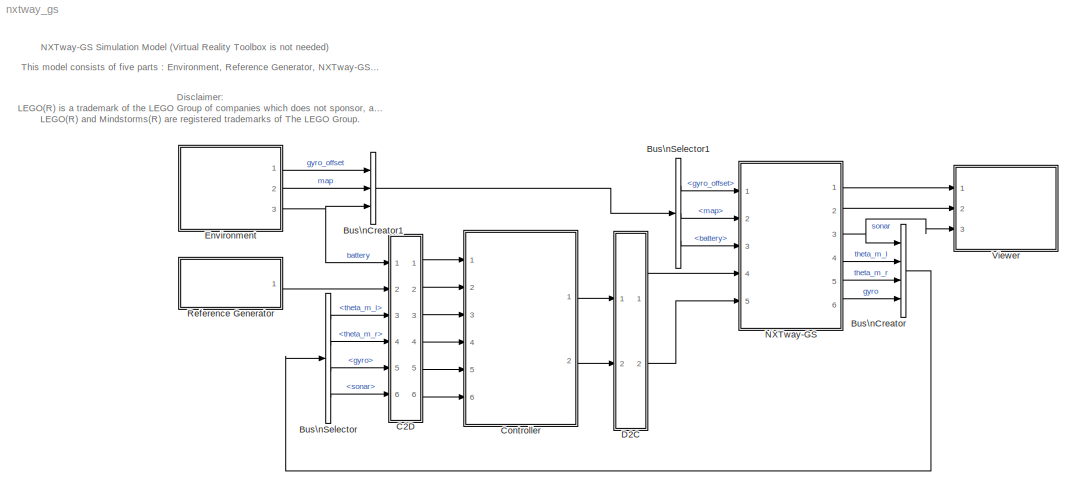
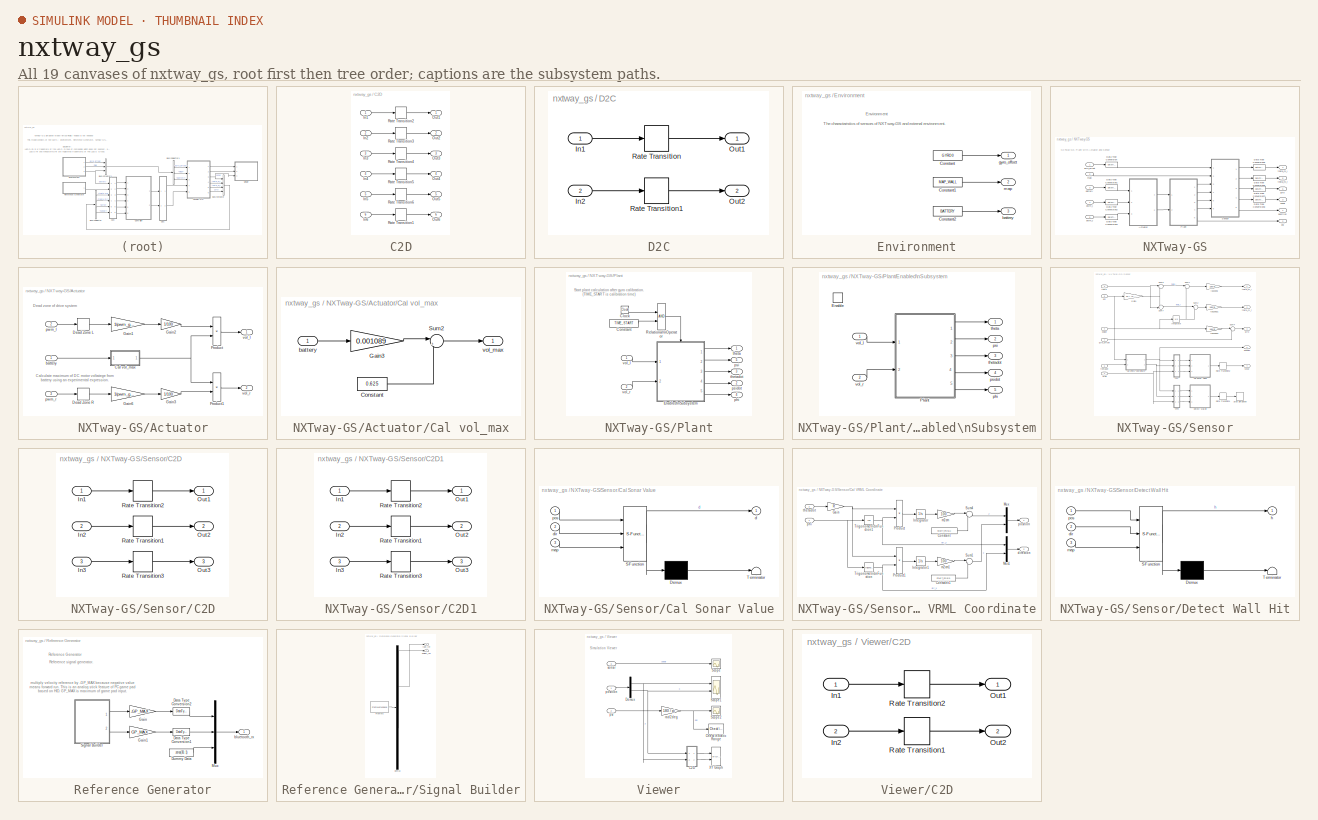
[diagram: thumbnail index - all 19 canvases of the model, root first then tree order]
MODEL nxtway_gs
KIND model
CONFIG PreLoadFcn = param_nxtway_gs
BLOCK [BusCreator] Bus\nCreator
  DisplayOption = bar
  Ports = [4, 1]
BLOCK [BusCreator] Bus\nCreator1
  DisplayOption = bar
  Inputs = 3
  Ports = [3, 1]
BLOCK [BusSelector] Bus\nSelector
  OutputSignals = theta_m_l,theta_m_r,gyro,sonar
  Ports = [1, 4]
BLOCK [BusSelector] Bus\nSelector1
  OutputSignals = gyro_offset,map,battery
  Ports = [1, 3]
BLOCK [SubSystem] C2D
  FunctionWithSeparateData = off
  MaskDisplay = fprintf('C2D')
  MaskIconFrame = on
  MaskIconOpaque = on
  MaskIconRotate = none
  MaskIconUnits = autoscale
  MinAlgLoopOccurrences = off
  Ports = [6, 6]
  RTWSystemCode = Auto
BLOCK [Inport] C2D/In1
  IconDisplay = Port number
  OutDataType = sfix(16)
  OutScaling = 2^0
BLOCK [Inport] C2D/In2
  IconDisplay = Port number
  OutDataType = sfix(16)
  OutScaling = 2^0
  Port = 2
BLOCK [Inport] C2D/In3
  IconDisplay = Port number
  OutDataType = sfix(16)
  OutScaling = 2^0
  Port = 3
BLOCK [Inport] C2D/In4
  IconDisplay = Port number
  OutDataType = sfix(16)
  OutScaling = 2^0
  Port = 4
BLOCK [Inport] C2D/In5
  IconDisplay = Port number
  OutDataType = sfix(16)
  OutScaling = 2^0
  Port = 5
BLOCK [Inport] C2D/In6
  IconDisplay = Port number
  OutDataType = sfix(16)
  OutScaling = 2^0
  Port = 6
BLOCK [Outport] C2D/Out1
  IconDisplay = Port number
  OutDataType = sfix(16)
  OutScaling = 2^0
BLOCK [Outport] C2D/Out2
  IconDisplay = Port number
  OutDataType = sfix(16)
  OutScaling = 2^0
  Port = 2
BLOCK [Outport] C2D/Out3
  IconDisplay = Port number
  OutDataType = sfix(16)
  OutScaling = 2^0
  Port = 3
BLOCK [Outport] C2D/Out4
  IconDisplay = Port number
  OutDataType = sfix(16)
  OutScaling = 2^0
  Port = 4
BLOCK [Outport] C2D/Out5
  IconDisplay = Port number
  OutDataType = sfix(16)
  OutScaling = 2^0
  Port = 5
BLOCK [Outport] C2D/Out6
  IconDisplay = Port number
  OutDataType = sfix(16)
  OutScaling = 2^0
  Port = 6
BLOCK [RateTransition] C2D/Rate Transition1
  AttributesFormatString = Ts=%<OutPortSampleTime>
  Integrity = off
  OutPortSampleTime = TS
BLOCK [RateTransition] C2D/Rate Transition2
  AttributesFormatString = Ts=%<OutPortSampleTime>
  Integrity = off
  OutPortSampleTime = TS
BLOCK [RateTransition] C2D/Rate Transition3
  AttributesFormatString = Ts=%<OutPortSampleTime>
  Integrity = off
  OutPortSampleTime = TS
BLOCK [RateTransition] C2D/Rate Transition4
  AttributesFormatString = Ts=%<OutPortSampleTime>
  Integrity = off
  OutPortSampleTime = TS
BLOCK [RateTransition] C2D/Rate Transition5
  AttributesFormatString = Ts=%<OutPortSampleTime>
  Integrity = off
  OutPortSampleTime = TS
BLOCK [RateTransition] C2D/Rate Transition6
  AttributesFormatString = Ts=%<OutPortSampleTime>
  Integrity = off
  OutPortSampleTime = TS
BLOCK [ModelReference] Controller
  CopyOfModelName = nxtway_gs_controller
  ModelName = nxtway_gs_controller
  ModelReferenceVersion = 1.721
  Ports = [6, 2]
BLOCK [SubSystem] D2C
  FunctionWithSeparateData = off
  MaskDisplay = fprintf('D2C')
  MaskIconFrame = on
  MaskIconOpaque = on
  MaskIconRotate = none
  MaskIconUnits = autoscale
  MinAlgLoopOccurrences = off
  Ports = [2, 2]
  RTWSystemCode = Auto
BLOCK [Inport] D2C/In1
  IconDisplay = Port number
  OutDataType = sfix(16)
  OutScaling = 2^0
BLOCK [Inport] D2C/In2
  IconDisplay = Port number
  OutDataType = sfix(16)
  OutScaling = 2^0
  Port = 2
BLOCK [Outport] D2C/Out1
  IconDisplay = Port number
  OutDataType = sfix(16)
  OutScaling = 2^0
  SampleTime = 0
BLOCK [Outport] D2C/Out2
  IconDisplay = Port number
  OutDataType = sfix(16)
  OutScaling = 2^0
  Port = 2
  SampleTime = 0
BLOCK [RateTransition] D2C/Rate Transition
  AttributesFormatString = Ts=%<OutPortSampleTime>
  Integrity = off
  OutPortSampleTime = 0
BLOCK [RateTransition] D2C/Rate Transition1
  AttributesFormatString = Ts=%<OutPortSampleTime>
  Integrity = off
  OutPortSampleTime = 0
BLOCK [SubSystem] Environment
  FunctionWithSeparateData = off
  MinAlgLoopOccurrences = off
  Ports = [0, 3]
  RTWSystemCode = Auto
BLOCK [Constant] Environment/Constant
  AttributesFormatString = DataType = %<OutDataTypeStr>
  OutDataType = sfix(16)
  OutDataTypeMode = uint16
  OutScaling = 2^0
  Value = GYRO0
BLOCK [Constant] Environment/Constant1
  AttributesFormatString = DataType = %<OutDataTypeStr>
  OutDataType = sfix(16)
  OutDataTypeMode = boolean
  OutScaling = 2^0
  Value = MAP_WALL
  VectorParams1D = off
BLOCK [Constant] Environment/Constant2
  AttributesFormatString = DataType = %<OutDataTypeStr>
  OutDataType = sfix(16)
  OutDataTypeMode = uint16
  OutScaling = 2^0
  Value = BATTERY
BLOCK [Outport] Environment/battery
  IconDisplay = Port number
  OutDataType = sfix(16)
  OutScaling = 2^0
  Port = 3
BLOCK [Outport] Environment/gyro_offset
  IconDisplay = Port number
  OutDataType = sfix(16)
  OutScaling = 2^0
BLOCK [Outport] Environment/map
  IconDisplay = Port number
  OutDataType = sfix(16)
  OutScaling = 2^0
  Port = 2
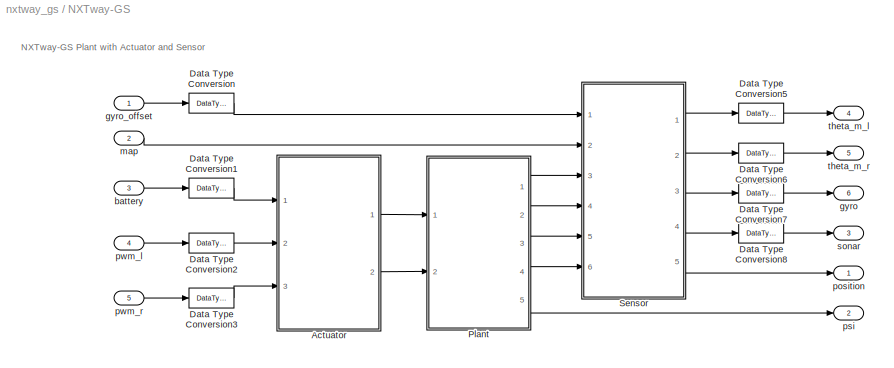
BLOCK [SubSystem] NXTway-GS
  FunctionWithSeparateData = off
  MinAlgLoopOccurrences = off
  Ports = [5, 6]
  RTWSystemCode = Auto
BLOCK [SubSystem] NXTway-GS/Actuator
  FunctionWithSeparateData = off
  MinAlgLoopOccurrences = off
  Ports = [3, 2]
  RTWSystemCode = Auto
BLOCK [SubSystem] NXTway-GS/Actuator/Cal vol_max
  FunctionWithSeparateData = off
  MinAlgLoopOccurrences = off
  Ports = [1, 1]
  RTWSystemCode = Auto
BLOCK [Constant] NXTway-GS/Actuator/Cal vol_max/Constant
  AttributesFormatString = DataType = %<OutDataTypeStr>
  OutDataType = sfix(16)
  OutDataTypeMode = double
  OutScaling = 2^0
  Value = 0.625
BLOCK [Gain] NXTway-GS/Actuator/Cal vol_max/Gain3
  Gain = 0.001089
  OutDataType = sfix(16)
  OutScaling = 2^0
  ParameterDataType = sfix(16)
  ParameterScaling = 2^0
  SaturateOnIntegerOverflow = off
BLOCK [Sum] NXTway-GS/Actuator/Cal vol_max/Sum2
  CollapseMode = All dimensions
  IconShape = round
  InputSameDT = off
  Inputs = |+-
  OutDataType = sfix(16)
  OutScaling = 2^0
  Ports = [2, 1]
  SaturateOnIntegerOverflow = off
BLOCK [Inport] NXTway-GS/Actuator/Cal vol_max/battery
  IconDisplay = Port number
BLOCK [Outport] NXTway-GS/Actuator/Cal vol_max/vol_max
  IconDisplay = Port number
BLOCK [DeadZone] NXTway-GS/Actuator/Dead Zone L
  AttributesFormatString = start=%<LowerValue>\\nend=%<UpperValue>
  LowerValue = -pwm_offset
  UpperValue = pwm_offset
BLOCK [DeadZone] NXTway-GS/Actuator/Dead Zone R
  AttributesFormatString = start=%<LowerValue>\\nend=%<UpperValue>
  LowerValue = -pwm_offset
  UpperValue = pwm_offset
BLOCK [Gain] NXTway-GS/Actuator/Gain1
  Gain = 1/pwm_gain
  OutDataType = sfix(16)
  OutScaling = 2^0
  ParameterDataType = sfix(16)
  ParameterScaling = 2^0
  SaturateOnIntegerOverflow = off
BLOCK [Gain] NXTway-GS/Actuator/Gain2
  Gain = 1/100
  OutDataType = sfix(16)
  OutScaling = 2^0
  ParameterDataType = sfix(16)
  ParameterScaling = 2^0
  SaturateOnIntegerOverflow = off
BLOCK [Gain] NXTway-GS/Actuator/Gain3
  Gain = 1/100
  OutDataType = sfix(16)
  OutScaling = 2^0
  ParameterDataType = sfix(16)
  ParameterScaling = 2^0
  SaturateOnIntegerOverflow = off
BLOCK [Gain] NXTway-GS/Actuator/Gain6
  Gain = 1/pwm_gain
  OutDataType = sfix(16)
  OutScaling = 2^0
  ParameterDataType = sfix(16)
  ParameterScaling = 2^0
  SaturateOnIntegerOverflow = off
BLOCK [Product] NXTway-GS/Actuator/Product
  CollapseMode = All dimensions
  InputSameDT = off
  OutDataType = sfix(16)
  OutDataTypeMode = Inherit via internal rule
  OutScaling = 2^0
  Ports = [2, 1]
  RndMeth = Simplest
  SaturateOnIntegerOverflow = off
BLOCK [Product] NXTway-GS/Actuator/Product1
  CollapseMode = All dimensions
  InputSameDT = off
  OutDataType = sfix(16)
  OutDataTypeMode = Inherit via internal rule
  OutScaling = 2^0
  Ports = [2, 1]
  RndMeth = Simplest
  SaturateOnIntegerOverflow = off
BLOCK [Inport] NXTway-GS/Actuator/battery
  IconDisplay = Port number
  OutDataType = sfix(16)
  OutScaling = 2^0
BLOCK [Inport] NXTway-GS/Actuator/pwm_l
  IconDisplay = Port number
  OutDataType = sfix(16)
  OutScaling = 2^0
  Port = 2
BLOCK [Inport] NXTway-GS/Actuator/pwm_r
  IconDisplay = Port number
  OutDataType = sfix(16)
  OutScaling = 2^0
  Port = 3
BLOCK [Outport] NXTway-GS/Actuator/vol_l
  IconDisplay = Port number
  OutDataType = sfix(16)
  OutScaling = 2^0
BLOCK [Outport] NXTway-GS/Actuator/vol_r
  IconDisplay = Port number
  OutDataType = sfix(16)
  OutScaling = 2^0
  Port = 2
BLOCK [DataTypeConversion] NXTway-GS/Data Type Conversion
  AttributesFormatString = Round = %<RndMeth>
  OutDataType = sfix(16)
  OutDataTypeMode = double
  OutScaling = 2^0
  RndMeth = Nearest
  SaturateOnIntegerOverflow = off
BLOCK [DataTypeConversion] NXTway-GS/Data Type Conversion1
  AttributesFormatString = Round = %<RndMeth>
  OutDataType = sfix(16)
  OutDataTypeMode = double
  OutScaling = 2^0
  RndMeth = Nearest
  SaturateOnIntegerOverflow = off
BLOCK [DataTypeConversion] NXTway-GS/Data Type Conversion2
  AttributesFormatString = Round = %<RndMeth>
  OutDataType = sfix(16)
  OutDataTypeMode = double
  OutScaling = 2^0
  RndMeth = Nearest
  SaturateOnIntegerOverflow = off
BLOCK [DataTypeConversion] NXTway-GS/Data Type Conversion3
  AttributesFormatString = Round = %<RndMeth>
  OutDataType = sfix(16)
  OutDataTypeMode = double
  OutScaling = 2^0
  RndMeth = Nearest
  SaturateOnIntegerOverflow = off
BLOCK [DataTypeConversion] NXTway-GS/Data Type Conversion5
  AttributesFormatString = Round = %<RndMeth>
  OutDataType = sfix(16)
  OutDataTypeMode = int32
  OutScaling = 2^0
  RndMeth = Nearest
  SaturateOnIntegerOverflow = off
BLOCK [DataTypeConversion] NXTway-GS/Data Type Conversion6
  AttributesFormatString = Round = %<RndMeth>
  OutDataType = sfix(16)
  OutDataTypeMode = int32
  OutScaling = 2^0
  RndMeth = Nearest
  SaturateOnIntegerOverflow = off
BLOCK [DataTypeConversion] NXTway-GS/Data Type Conversion7
  AttributesFormatString = Round = %<RndMeth>
  OutDataType = sfix(16)
  OutDataTypeMode = uint16
  OutScaling = 2^0
  RndMeth = Nearest
  SaturateOnIntegerOverflow = off
BLOCK [DataTypeConversion] NXTway-GS/Data Type Conversion8
  AttributesFormatString = Round = %<RndMeth>
  OutDataType = sfix(16)
  OutDataTypeMode = int32
  OutScaling = 2^0
  RndMeth = Nearest
  SaturateOnIntegerOverflow = off
BLOCK [SubSystem] NXTway-GS/Plant
  FunctionWithSeparateData = off
  MinAlgLoopOccurrences = off
  Ports = [2, 5]
  RTWSystemCode = Auto
BLOCK [Clock] NXTway-GS/Plant/Clock
  Decimation = 1
BLOCK [Constant] NXTway-GS/Plant/Constant
  AttributesFormatString = DataType = %<OutDataTypeStr>
  OutDataType = sfix(16)
  OutDataTypeMode = double
  OutScaling = 2^0
  Value = TIME_START
BLOCK [SubSystem] NXTway-GS/Plant/Enabled\nSubsystem
  FunctionWithSeparateData = off
  MinAlgLoopOccurrences = off
  Ports = [2, 5, 1]
  RTWSystemCode = Auto
  TreatAsAtomicUnit = on
BLOCK [EnablePort] NXTway-GS/Plant/Enabled\nSubsystem/Enable
  Ports = []
BLOCK [ModelReference] NXTway-GS/Plant/Enabled\nSubsystem/Plant
  CopyOfModelName = nxtway_gs_plant
  ModelName = nxtway_gs_plant
  ModelReferenceVersion = 1.41
  Ports = [2, 5]
BLOCK [Outport] NXTway-GS/Plant/Enabled\nSubsystem/phi
  IconDisplay = Port number
  InitialOutput = 0
  Port = 5
BLOCK [Outport] NXTway-GS/Plant/Enabled\nSubsystem/psi
  IconDisplay = Port number
  InitialOutput = 0
  Port = 2
BLOCK [Outport] NXTway-GS/Plant/Enabled\nSubsystem/psidot
  IconDisplay = Port number
  InitialOutput = 0
  Port = 4
BLOCK [Outport] NXTway-GS/Plant/Enabled\nSubsystem/theta
  IconDisplay = Port number
  InitialOutput = 0
BLOCK [Outport] NXTway-GS/Plant/Enabled\nSubsystem/thetadot
  IconDisplay = Port number
  InitialOutput = 0
  Port = 3
BLOCK [Inport] NXTway-GS/Plant/Enabled\nSubsystem/vol_l
  IconDisplay = Port number
BLOCK [Inport] NXTway-GS/Plant/Enabled\nSubsystem/vol_r
  IconDisplay = Port number
  Port = 2
BLOCK [RelationalOperator] NXTway-GS/Plant/Relational\nOperator
  InputSameDT = off
  LogicOutDataTypeMode = boolean
BLOCK [Outport] NXTway-GS/Plant/phi
  IconDisplay = Port number
  Port = 4
BLOCK [Outport] NXTway-GS/Plant/psi
  IconDisplay = Port number
  Port = 5
BLOCK [Outport] NXTway-GS/Plant/psidot
  IconDisplay = Port number
  Port = 2
BLOCK [Outport] NXTway-GS/Plant/theta
  IconDisplay = Port number
BLOCK [Outport] NXTway-GS/Plant/thetadot
  IconDisplay = Port number
  Port = 3
BLOCK [Inport] NXTway-GS/Plant/vol_l
  IconDisplay = Port number
BLOCK [Inport] NXTway-GS/Plant/vol_r
  IconDisplay = Port number
  Port = 2
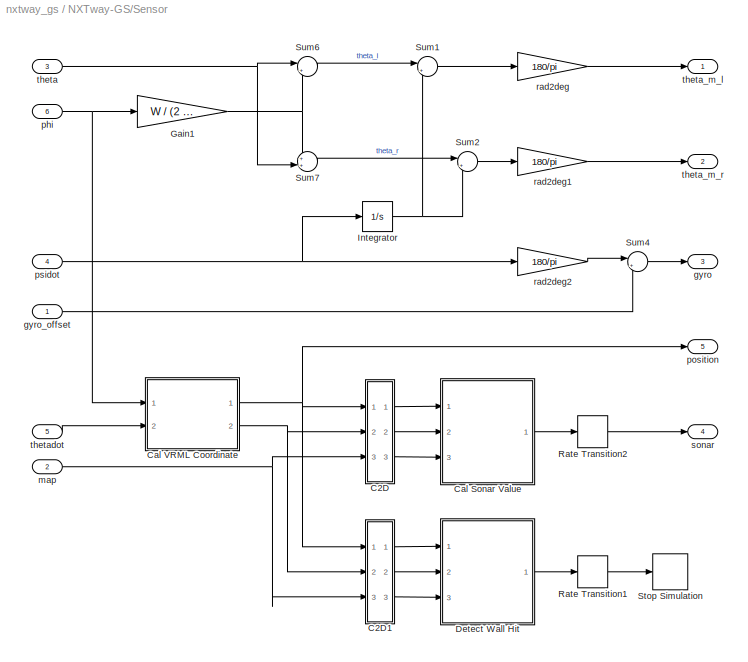
BLOCK [SubSystem] NXTway-GS/Sensor
  FunctionWithSeparateData = off
  MinAlgLoopOccurrences = off
  Ports = [6, 5]
  RTWSystemCode = Auto
BLOCK [SubSystem] NXTway-GS/Sensor/C2D
  FunctionWithSeparateData = off
  MaskDisplay = fprintf('C2D')
  MaskIconFrame = on
  MaskIconOpaque = on
  MaskIconRotate = none
  MaskIconUnits = autoscale
  MinAlgLoopOccurrences = off
  Ports = [3, 3]
  RTWSystemCode = Auto
BLOCK [Inport] NXTway-GS/Sensor/C2D/In1
  IconDisplay = Port number
  OutDataType = sfix(16)
  OutScaling = 2^0
BLOCK [Inport] NXTway-GS/Sensor/C2D/In2
  IconDisplay = Port number
  OutDataType = sfix(16)
  OutScaling = 2^0
  Port = 2
BLOCK [Inport] NXTway-GS/Sensor/C2D/In3
  IconDisplay = Port number
  OutDataType = sfix(16)
  OutScaling = 2^0
  Port = 3
BLOCK [Outport] NXTway-GS/Sensor/C2D/Out1
  IconDisplay = Port number
  OutDataType = sfix(16)
  OutScaling = 2^0
BLOCK [Outport] NXTway-GS/Sensor/C2D/Out2
  IconDisplay = Port number
  OutDataType = sfix(16)
  OutScaling = 2^0
  Port = 2
BLOCK [Outport] NXTway-GS/Sensor/C2D/Out3
  IconDisplay = Port number
  OutDataType = sfix(16)
  OutScaling = 2^0
  Port = 3
BLOCK [RateTransition] NXTway-GS/Sensor/C2D/Rate Transition1
  AttributesFormatString = Ts=%<OutPortSampleTime>
  Integrity = off
  OutPortSampleTime = TS_SONAR
BLOCK [RateTransition] NXTway-GS/Sensor/C2D/Rate Transition2
  AttributesFormatString = Ts=%<OutPortSampleTime>
  Integrity = off
  OutPortSampleTime = TS_SONAR
BLOCK [RateTransition] NXTway-GS/Sensor/C2D/Rate Transition3
  AttributesFormatString = Ts=%<OutPortSampleTime>
  Integrity = off
  OutPortSampleTime = TS_SONAR
BLOCK [SubSystem] NXTway-GS/Sensor/C2D1
  FunctionWithSeparateData = off
  MaskDisplay = fprintf('C2D')
  MaskIconFrame = on
  MaskIconOpaque = on
  MaskIconRotate = none
  MaskIconUnits = autoscale
  MinAlgLoopOccurrences = off
  Ports = [3, 3]
  RTWSystemCode = Auto
BLOCK [Inport] NXTway-GS/Sensor/C2D1/In1
  IconDisplay = Port number
  OutDataType = sfix(16)
  OutScaling = 2^0
BLOCK [Inport] NXTway-GS/Sensor/C2D1/In2
  IconDisplay = Port number
  OutDataType = sfix(16)
  OutScaling = 2^0
  Port = 2
BLOCK [Inport] NXTway-GS/Sensor/C2D1/In3
  IconDisplay = Port number
  OutDataType = sfix(16)
  OutScaling = 2^0
  Port = 3
BLOCK [Outport] NXTway-GS/Sensor/C2D1/Out1
  IconDisplay = Port number
  OutDataType = sfix(16)
  OutScaling = 2^0
BLOCK [Outport] NXTway-GS/Sensor/C2D1/Out2
  IconDisplay = Port number
  OutDataType = sfix(16)
  OutScaling = 2^0
  Port = 2
BLOCK [Outport] NXTway-GS/Sensor/C2D1/Out3
  IconDisplay = Port number
  OutDataType = sfix(16)
  OutScaling = 2^0
  Port = 3
BLOCK [RateTransition] NXTway-GS/Sensor/C2D1/Rate Transition1
  AttributesFormatString = Ts=%<OutPortSampleTime>
  Integrity = off
  OutPortSampleTime = TS_WALL
BLOCK [RateTransition] NXTway-GS/Sensor/C2D1/Rate Transition2
  AttributesFormatString = Ts=%<OutPortSampleTime>
  Integrity = off
  OutPortSampleTime = TS_WALL
BLOCK [RateTransition] NXTway-GS/Sensor/C2D1/Rate Transition3
  AttributesFormatString = Ts=%<OutPortSampleTime>
  Integrity = off
  OutPortSampleTime = TS_WALL
BLOCK [SubSystem] NXTway-GS/Sensor/Cal Sonar Value
  FunctionWithSeparateData = off
  MaskDescription = Embedded MATLAB block
  MaskDisplay = disp('cal_sonar');
  MaskIconFrame = on
  MaskIconOpaque = off
  MaskIconRotate = none
  MaskIconUnits = autoscale
  MaskSelfModifiable = on
  MaskType = Stateflow
  MinAlgLoopOccurrences = off
  PermitHierarchicalResolution = ExplicitOnly
  Ports = [3, 1]
  RTWSystemCode = Auto
BLOCK [Demux] NXTway-GS/Sensor/Cal Sonar Value/ Demux 
  Outputs = 1
  Ports = [1, 1]
BLOCK [S-Function] NXTway-GS/Sensor/Cal Sonar Value/ SFunction 
  EnableBusSupport = on
  FunctionName = sf_sfun
  PortCounts = [3 2]
  Ports = [3, 2]
  Tag = Stateflow S-Function nxtway_gs 2
BLOCK [Terminator] NXTway-GS/Sensor/Cal Sonar Value/ Terminator 
BLOCK [Outport] NXTway-GS/Sensor/Cal Sonar Value/d
  IconDisplay = Port number
  OutDataType = sfix(16)
  OutScaling = 2^0
BLOCK [Inport] NXTway-GS/Sensor/Cal Sonar Value/dir
  IconDisplay = Port number
  OutDataType = sfix(16)
  OutScaling = 2^0
  Port = 2
BLOCK [Inport] NXTway-GS/Sensor/Cal Sonar Value/map
  IconDisplay = Port number
  Port = 3
BLOCK [Inport] NXTway-GS/Sensor/Cal Sonar Value/pos
  IconDisplay = Port number
BLOCK [SubSystem] NXTway-GS/Sensor/Cal VRML Coordinate
  FunctionWithSeparateData = off
  MinAlgLoopOccurrences = off
  Ports = [2, 2]
  RTWSystemCode = Auto
BLOCK [Constant] NXTway-GS/Sensor/Cal VRML Coordinate/Constant
  AttributesFormatString = DataType = %<OutDataTypeStr>
  OutDataType = sfix(16)
  OutDataTypeMode = double
  OutScaling = 2^0
  Value = START_POS(1)
BLOCK [Constant] NXTway-GS/Sensor/Cal VRML Coordinate/Constant1
  AttributesFormatString = DataType = %<OutDataTypeStr>
  OutDataType = sfix(16)
  OutDataTypeMode = double
  OutScaling = 2^0
  Value = START_POS(2)
BLOCK [Gain] NXTway-GS/Sensor/Cal VRML Coordinate/Gain
  Gain = R
  OutDataType = sfix(16)
  OutDataTypeMode = Inherit via internal rule
  OutScaling = 2^0
  ParameterDataType = sfix(16)
  ParameterDataTypeMode = Inherit via internal rule
  ParameterScaling = 2^0
  SaturateOnIntegerOverflow = off
BLOCK [Integrator] NXTway-GS/Sensor/Cal VRML Coordinate/Integrator
  Ports = [1, 1]
BLOCK [Integrator] NXTway-GS/Sensor/Cal VRML Coordinate/Integrator1
  Ports = [1, 1]
BLOCK [Mux] NXTway-GS/Sensor/Cal VRML Coordinate/Mux
  DisplayOption = bar
  Inputs = 2
  Ports = [2, 1]
BLOCK [Mux] NXTway-GS/Sensor/Cal VRML Coordinate/Mux1
  DisplayOption = bar
  Inputs = 2
  Ports = [2, 1]
BLOCK [Product] NXTway-GS/Sensor/Cal VRML Coordinate/Product
  CollapseMode = All dimensions
  InputSameDT = off
  OutDataType = sfix(16)
  OutDataTypeMode = Inherit via internal rule
  OutScaling = 2^0
  Ports = [2, 1]
  RndMeth = Simplest
  SaturateOnIntegerOverflow = off
BLOCK [Product] NXTway-GS/Sensor/Cal VRML Coordinate/Product1
  CollapseMode = All dimensions
  InputSameDT = off
  OutDataType = sfix(16)
  OutDataTypeMode = Inherit via internal rule
  OutScaling = 2^0
  Ports = [2, 1]
  RndMeth = Simplest
  SaturateOnIntegerOverflow = off
BLOCK [Sum] NXTway-GS/Sensor/Cal VRML Coordinate/Sum1
  CollapseMode = All dimensions
  IconShape = round
  InputSameDT = off
  Inputs = |++
  OutDataType = sfix(16)
  OutDataTypeMode = Inherit via internal rule
  OutScaling = 2^0
  Ports = [2, 1]
  SaturateOnIntegerOverflow = off
BLOCK [Sum] NXTway-GS/Sensor/Cal VRML Coordinate/Sum4
  CollapseMode = All dimensions
  IconShape = round
  InputSameDT = off
  Inputs = |++
  OutDataType = sfix(16)
  OutDataTypeMode = Inherit via internal rule
  OutScaling = 2^0
  Ports = [2, 1]
  SaturateOnIntegerOverflow = off
BLOCK [Trigonometry] NXTway-GS/Sensor/Cal VRML Coordinate/Trigonometric\nFunction
  Ports = [1, 1]
BLOCK [Trigonometry] NXTway-GS/Sensor/Cal VRML Coordinate/Trigonometric\nFunction1
  Operator = cos
  Ports = [1, 1]
BLOCK [Outport] NXTway-GS/Sensor/Cal VRML Coordinate/direction
  IconDisplay = Port number
  Port = 2
BLOCK [Gain] NXTway-GS/Sensor/Cal VRML Coordinate/m2cm
  Gain = 100
  OutDataType = sfix(16)
  OutDataTypeMode = Inherit via internal rule
  OutScaling = 2^0
  ParameterDataType = sfix(16)
  ParameterDataTypeMode = Inherit via internal rule
  ParameterScaling = 2^0
  SaturateOnIntegerOverflow = off
BLOCK [Gain] NXTway-GS/Sensor/Cal VRML Coordinate/m2cm1
  Gain = 100
  OutDataType = sfix(16)
  OutDataTypeMode = Inherit via internal rule
  OutScaling = 2^0
  ParameterDataType = sfix(16)
  ParameterDataTypeMode = Inherit via internal rule
  ParameterScaling = 2^0
  SaturateOnIntegerOverflow = off
BLOCK [Inport] NXTway-GS/Sensor/Cal VRML Coordinate/phi
  IconDisplay = Port number
BLOCK [Outport] NXTway-GS/Sensor/Cal VRML Coordinate/position
  IconDisplay = Port number
BLOCK [Inport] NXTway-GS/Sensor/Cal VRML Coordinate/thetadot
  IconDisplay = Port number
  Port = 2
BLOCK [SubSystem] NXTway-GS/Sensor/Detect Wall Hit
  FunctionWithSeparateData = off
  MaskDescription = Embedded MATLAB block
  MaskDisplay = disp('hit_wall');
  MaskIconFrame = on
  MaskIconOpaque = off
  MaskIconRotate = none
  MaskIconUnits = autoscale
  MaskSelfModifiable = on
  MaskType = Stateflow
  MinAlgLoopOccurrences = off
  PermitHierarchicalResolution = ExplicitOnly
  Ports = [3, 1]
  RTWSystemCode = Auto
BLOCK [Demux] NXTway-GS/Sensor/Detect Wall Hit/ Demux 
  Outputs = 1
  Ports = [1, 1]
BLOCK [S-Function] NXTway-GS/Sensor/Detect Wall Hit/ SFunction 
  EnableBusSupport = on
  FunctionName = sf_sfun
  Parameters = D,W
  PortCounts = [3 2]
  Ports = [3, 2]
  Tag = Stateflow S-Function nxtway_gs 1
BLOCK [Terminator] NXTway-GS/Sensor/Detect Wall Hit/ Terminator 
BLOCK [Inport] NXTway-GS/Sensor/Detect Wall Hit/dir
  IconDisplay = Port number
  Port = 2
BLOCK [Outport] NXTway-GS/Sensor/Detect Wall Hit/h
  IconDisplay = Port number
  OutDataType = sfix(16)
  OutScaling = 2^0
BLOCK [Inport] NXTway-GS/Sensor/Detect Wall Hit/map
  IconDisplay = Port number
  Port = 3
BLOCK [Inport] NXTway-GS/Sensor/Detect Wall Hit/pos
  IconDisplay = Port number
  OutDataType = sfix(16)
  OutScaling = 2^0
BLOCK [Gain] NXTway-GS/Sensor/Gain1
  Gain = W / (2 * R)
  OutDataType = sfix(16)
  OutDataTypeMode = Inherit via internal rule
  OutScaling = 2^0
  ParameterDataType = sfix(16)
  ParameterDataTypeMode = Inherit via internal rule
  ParameterScaling = 2^0
  SaturateOnIntegerOverflow = off
BLOCK [Integrator] NXTway-GS/Sensor/Integrator
  Ports = [1, 1]
BLOCK [RateTransition] NXTway-GS/Sensor/Rate Transition1
  AttributesFormatString = Ts=%<OutPortSampleTime>
  Integrity = off
  OutPortSampleTime = 0
BLOCK [RateTransition] NXTway-GS/Sensor/Rate Transition2
  AttributesFormatString = Ts=%<OutPortSampleTime>
  Integrity = off
  OutPortSampleTime = 0
BLOCK [Stop] NXTway-GS/Sensor/Stop Simulation
BLOCK [Sum] NXTway-GS/Sensor/Sum1
  CollapseMode = All dimensions
  IconShape = round
  InputSameDT = off
  Inputs = |+-
  OutDataType = sfix(16)
  OutDataTypeMode = Inherit via internal rule
  OutScaling = 2^0
  Ports = [2, 1]
  SaturateOnIntegerOverflow = off
BLOCK [Sum] NXTway-GS/Sensor/Sum2
  CollapseMode = All dimensions
  IconShape = round
  InputSameDT = off
  Inputs = |+-
  OutDataType = sfix(16)
  OutDataTypeMode = Inherit via internal rule
  OutScaling = 2^0
  Ports = [2, 1]
  SaturateOnIntegerOverflow = off
BLOCK [Sum] NXTway-GS/Sensor/Sum4
  CollapseMode = All dimensions
  IconShape = round
  InputSameDT = off
  Inputs = |++
  OutDataType = sfix(16)
  OutDataTypeMode = Inherit via internal rule
  OutScaling = 2^0
  Ports = [2, 1]
  SaturateOnIntegerOverflow = off
BLOCK [Sum] NXTway-GS/Sensor/Sum6
  CollapseMode = All dimensions
  IconShape = round
  InputSameDT = off
  Inputs = |+-
  OutDataType = sfix(16)
  OutDataTypeMode = Inherit via internal rule
  OutScaling = 2^0
  Ports = [2, 1]
  SaturateOnIntegerOverflow = off
BLOCK [Sum] NXTway-GS/Sensor/Sum7
  CollapseMode = All dimensions
  IconShape = round
  InputSameDT = off
  Inputs = ++|
  OutDataType = sfix(16)
  OutDataTypeMode = Inherit via internal rule
  OutScaling = 2^0
  Ports = [2, 1]
  SaturateOnIntegerOverflow = off
BLOCK [Outport] NXTway-GS/Sensor/gyro
  IconDisplay = Port number
  OutDataType = sfix(16)
  OutScaling = 2^0
  Port = 3
BLOCK [Inport] NXTway-GS/Sensor/gyro_offset
  IconDisplay = Port number
  OutDataType = sfix(16)
  OutScaling = 2^0
BLOCK [Inport] NXTway-GS/Sensor/map
  IconDisplay = Port number
  OutDataType = sfix(16)
  OutScaling = 2^0
  Port = 2
BLOCK [Inport] NXTway-GS/Sensor/phi
  IconDisplay = Port number
  OutDataType = sfix(16)
  OutScaling = 2^0
  Port = 6
BLOCK [Outport] NXTway-GS/Sensor/position
  IconDisplay = Port number
  OutDataType = sfix(16)
  OutScaling = 2^0
  Port = 5
BLOCK [Inport] NXTway-GS/Sensor/psidot
  IconDisplay = Port number
  OutDataType = sfix(16)
  OutScaling = 2^0
  Port = 4
BLOCK [Gain] NXTway-GS/Sensor/rad2deg
  Gain = 180/pi
  OutDataType = sfix(16)
  OutDataTypeMode = Inherit via internal rule
  OutScaling = 2^0
  ParameterDataType = sfix(16)
  ParameterDataTypeMode = Inherit via internal rule
  ParameterScaling = 2^0
  SaturateOnIntegerOverflow = off
BLOCK [Gain] NXTway-GS/Sensor/rad2deg1
  Gain = 180/pi
  OutDataType = sfix(16)
  OutDataTypeMode = Inherit via internal rule
  OutScaling = 2^0
  ParameterDataType = sfix(16)
  ParameterDataTypeMode = Inherit via internal rule
  ParameterScaling = 2^0
  SaturateOnIntegerOverflow = off
BLOCK [Gain] NXTway-GS/Sensor/rad2deg2
  Gain = 180/pi
  OutDataType = sfix(16)
  OutDataTypeMode = Inherit via internal rule
  OutScaling = 2^0
  ParameterDataType = sfix(16)
  ParameterDataTypeMode = Inherit via internal rule
  ParameterScaling = 2^0
  SaturateOnIntegerOverflow = off
BLOCK [Outport] NXTway-GS/Sensor/sonar
  IconDisplay = Port number
  OutDataType = sfix(16)
  OutScaling = 2^0
  Port = 4
BLOCK [Inport] NXTway-GS/Sensor/theta
  IconDisplay = Port number
  OutDataType = sfix(16)
  OutScaling = 2^0
  Port = 3
BLOCK [Outport] NXTway-GS/Sensor/theta_m_l
  IconDisplay = Port number
  OutDataType = sfix(16)
  OutScaling = 2^0
BLOCK [Outport] NXTway-GS/Sensor/theta_m_r
  IconDisplay = Port number
  OutDataType = sfix(16)
  OutScaling = 2^0
  Port = 2
BLOCK [Inport] NXTway-GS/Sensor/thetadot
  IconDisplay = Port number
  OutDataType = sfix(16)
  OutScaling = 2^0
  Port = 5
BLOCK [Inport] NXTway-GS/battery
  IconDisplay = Port number
  Port = 3
BLOCK [Outport] NXTway-GS/gyro
  IconDisplay = Port number
  Port = 6
BLOCK [Inport] NXTway-GS/gyro_offset
  IconDisplay = Port number
BLOCK [Inport] NXTway-GS/map
  IconDisplay = Port number
  Port = 2
BLOCK [Outport] NXTway-GS/position
  IconDisplay = Port number
  OutDataType = sfix(16)
  OutScaling = 2^0
BLOCK [Outport] NXTway-GS/psi
  IconDisplay = Port number
  Port = 2
BLOCK [Inport] NXTway-GS/pwm_l
  IconDisplay = Port number
  Port = 4
BLOCK [Inport] NXTway-GS/pwm_r
  IconDisplay = Port number
  Port = 5
BLOCK [Outport] NXTway-GS/sonar
  IconDisplay = Port number
  Port = 3
BLOCK [Outport] NXTway-GS/theta_m_l
  IconDisplay = Port number
  Port = 4
BLOCK [Outport] NXTway-GS/theta_m_r
  IconDisplay = Port number
  Port = 5
BLOCK [SubSystem] Reference Generator
  FunctionWithSeparateData = off
  MinAlgLoopOccurrences = off
  Ports = [0, 1]
  RTWSystemCode = Auto
BLOCK [DataTypeConversion] Reference Generator/Data Type Conversion1
  AttributesFormatString = Round = %<RndMeth>
  OutDataType = sfix(16)
  OutDataTypeMode = uint8
  OutScaling = 2^0
  RndMeth = Nearest
  SaturateOnIntegerOverflow = off
BLOCK [DataTypeConversion] Reference Generator/Data Type Conversion2
  AttributesFormatString = Round = %<RndMeth>
  OutDataType = sfix(16)
  OutDataTypeMode = uint8
  OutScaling = 2^0
  RndMeth = Nearest
  SaturateOnIntegerOverflow = off
BLOCK [Constant] Reference Generator/Dummy Data
  AttributesFormatString = DataType = %<OutDataTypeStr>
  OutDataType = sfix(16)
  OutDataTypeMode = uint8
  OutScaling = 2^0
  Value = zeros(30, 1)
BLOCK [Gain] Reference Generator/Gain
  Gain = -GP_MAX
  OutDataType = sfix(16)
  OutScaling = 2^0
  ParameterDataType = sfix(16)
  ParameterScaling = 2^0
  SaturateOnIntegerOverflow = off
BLOCK [Gain] Reference Generator/Gain1
  Gain = GP_MAX
  OutDataType = sfix(16)
  OutScaling = 2^0
  ParameterDataType = sfix(16)
  ParameterScaling = 2^0
  SaturateOnIntegerOverflow = off
BLOCK [Mux] Reference Generator/Mux
  DisplayOption = bar
  Inputs = 3
  Ports = [3, 1]
BLOCK [SubSystem] Reference Generator/Signal Builder
  ClipboardFcn = sigbuilder_block('clipboard');
  CloseFcn = sigbuilder_block('close');
  CopyFcn = sigbuilder_block('copy');
  DeleteFcn = sigbuilder_block('delete');
  FunctionWithSeparateData = off
  LoadFcn = sigbuilder_block('load');
  MaskCapabilities = slmaskedcaps(gcbh)
  MaskDescription = Sigbuilder GUI
  MaskDisplay = plot(0,0,100,100,[10,10,40,40,10],[80,20,20,80,80],[40,10],[50,50], [40,27,10],[65,72,56],[40,25,25,10],[28,28,43,43]);
  MaskIconFrame = on
  MaskIconOpaque = off
  MaskIconRotate = port
  MaskIconUnits = autoscale
  MaskInitialization = if ~strcmp(get_param(bdroot(gcbh),'SimulationStatus'),'stopped') tuvar = sigbuilder_block('maskInit'); end
  MaskType = Sigbuilder block
  MinAlgLoopOccurrences = off
  ModelCloseFcn = sigbuilder_block('modelClose');
  NameChangeFcn = sigbuilder_block('namechange');
  OpenFcn = sigbuilder_block('open',[103.5 117.75 516 349.5 ]);
  Ports = [0, 2]
  PreSaveFcn = sigbuilder_block('preSave');
  RTWSystemCode = Auto
  StartFcn = sigbuilder_block('start');
  StopFcn = sigbuilder_block('stop');
  Tag = STV Subsys
BLOCK [Demux] Reference Generator/Signal Builder/Demux
  Outputs = 2
  Ports = [1, 2]
  Tag = STV Demux
BLOCK [FromWorkspace] Reference Generator/Signal Builder/FromWs
  SampleTime = 0
  SigBuilderData = DataTag0
  Tag = STV FromWs
  VariableName = tuvar
  VnvData = DataTag1
  ZeroCross = on
BLOCK [Outport] Reference Generator/Signal Builder/phidot_ref
  IconDisplay = Port number
  Port = 2
  Tag = STV Outport
BLOCK [Outport] Reference Generator/Signal Builder/rdot_ref
  IconDisplay = Port number
  OutDataType = sfix(16)
  OutScaling = 2^0
  Tag = STV Outport
BLOCK [Outport] Reference Generator/bluetooth_rx
  IconDisplay = Port number
  OutDataType = sfix(16)
  OutScaling = 2^0
BLOCK [SubSystem] Viewer
  FunctionWithSeparateData = off
  MinAlgLoopOccurrences = off
  Ports = [3]
  RTWSystemCode = Auto
BLOCK [SubSystem] Viewer/C2D
  FunctionWithSeparateData = off
  MaskDisplay = fprintf('C2D')
  MaskIconFrame = on
  MaskIconOpaque = on
  MaskIconRotate = none
  MaskIconUnits = autoscale
  MinAlgLoopOccurrences = off
  Ports = [2, 2]
  RTWSystemCode = Auto
BLOCK [Inport] Viewer/C2D/In1
  IconDisplay = Port number
  OutDataType = sfix(16)
  OutScaling = 2^0
BLOCK [Inport] Viewer/C2D/In2
  IconDisplay = Port number
  OutDataType = sfix(16)
  OutScaling = 2^0
  Port = 2
BLOCK [Outport] Viewer/C2D/Out1
  IconDisplay = Port number
  OutDataType = sfix(16)
  OutScaling = 2^0
BLOCK [Outport] Viewer/C2D/Out2
  IconDisplay = Port number
  OutDataType = sfix(16)
  OutScaling = 2^0
  Port = 2
BLOCK [RateTransition] Viewer/C2D/Rate Transition1
  AttributesFormatString = Ts=%<OutPortSampleTime>
  Integrity = off
  OutPortSampleTime = TS_VR
BLOCK [RateTransition] Viewer/C2D/Rate Transition2
  AttributesFormatString = Ts=%<OutPortSampleTime>
  Integrity = off
  OutPortSampleTime = TS_VR
BLOCK [Reference] Viewer/Check \nStatic Range  REF=simulink/Model\nVerification/Check \nStatic Range
  Description = BODY_ANGLE_MIN <= u <= BODY_ANGLE_MAX
  FunctionWithSeparateData = off
  Ports = [1]
  RTWMemSecDataConstants = Inherit from model
  RTWMemSecDataInternal = Inherit from model
  RTWMemSecDataParameters = Inherit from model
  RTWMemSecFuncExecute = Inherit from model
  RTWMemSecFuncInitTerm = Inherit from model
  ShowPortLabels = FromPortIcon
  SourceBlock = simulink/Model\nVerification/Check \nStatic Range
  SourceType = Checks_SRange
  SystemSampleTime = -1
  enabled = on
  export = off
  icon = graphic
  max = BODY_ANGLE_MAX
  max_included = on
  min = BODY_ANGLE_MIN
  min_included = on
  stopWhenAssertionFail = on
BLOCK [Demux] Viewer/Demux
  DisplayOption = bar
  Outputs = 2
  Ports = [1, 2]
BLOCK [Scope] Viewer/Scope
  DataFormat = StructureWithTime
  Floating = off
  LimitDataPoints = off
  NumInputPorts = 1
  Ports = [1]
  SampleTime = 0
  SaveName = ScopeData2
BLOCK [Scope] Viewer/Scope1
  DataFormat = StructureWithTime
  Floating = off
  LimitDataPoints = off
  NumInputPorts = 2
  Ports = [2]
  SampleTime = 0
  SaveName = ScopeData1
  YMax = 5~5
  YMin = -5~-5
BLOCK [Scope] Viewer/Scope2
  DataFormat = StructureWithTime
  Floating = off
  LimitDataPoints = off
  NumInputPorts = 1
  Ports = [1]
  SampleTime = 0
BLOCK [Reference] Viewer/XY Graph  REF=simulink/Sinks/XY Graph
  FunctionWithSeparateData = off
  Ports = [2]
  RTWMemSecDataConstants = Inherit from model
  RTWMemSecDataInternal = Inherit from model
  RTWMemSecDataParameters = Inherit from model
  RTWMemSecFuncExecute = Inherit from model
  RTWMemSecFuncInitTerm = Inherit from model
  ShowPortLabels = FromPortIcon
  SourceBlock = simulink/Sinks/XY Graph
  SourceType = XY scope.
  SystemSampleTime = -1
  st = -1
  xmax = 300
  xmin = -100
  ymax = 300
  ymin = -100
BLOCK [Inport] Viewer/position
  IconDisplay = Port number
  OutDataType = sfix(16)
  OutScaling = 2^0
BLOCK [Inport] Viewer/psi
  IconDisplay = Port number
  OutDataType = sfix(16)
  OutScaling = 2^0
  Port = 2
BLOCK [Gain] Viewer/rad2deg
  Gain = 180 / pi
  OutDataType = sfix(16)
  OutDataTypeMode = Inherit via internal rule
  OutScaling = 2^0
  ParameterDataType = sfix(16)
  ParameterDataTypeMode = Inherit via internal rule
  ParameterScaling = 2^0
  SaturateOnIntegerOverflow = off
BLOCK [Inport] Viewer/sonar
  IconDisplay = Port number
  OutDataType = sfix(16)
  OutScaling = 2^0
  Port = 3
ANNOTATION (root): Disclaimer:\nLEGO(R) is a trademark of the LEGO Group of companies which does not sponsor, authorize or endorse this demo.\nLEGO(R) and Mindstorms(R) are registered trademarks of The LEGO Group.
ANNOTATION (root): NXTway-GS Simulation Model (Virtual Reality Toolbox is not needed)
ANNOTATION (root): This model consists of five parts : Environment, Reference Generator, NXTway-GS Controller, NXTway-GS Plant, and Simulation Viewer.
ANNOTATION Environment: Environment
ANNOTATION Environment: The charactaristics of sensors of NXTway-GS and external environment.
ANNOTATION NXTway-GS: NXTway-GS Plant with Actuator and Sensor
ANNOTATION NXTway-GS/Actuator: Calculate maximum of DC motor voltatege from\nbattery using an experimental expression.
ANNOTATION NXTway-GS/Actuator: Dead zone of drive system
ANNOTATION NXTway-GS/Plant: Start plant calculation after gyro calibration.\n(TIME_START is calibration time)
ANNOTATION Reference Generator: Reference Generator
ANNOTATION Reference Generator: Reference signal generator.
ANNOTATION Reference Generator: multiply velocity reference by -GP_MAX because negative value\nmeans forward run. This is an analog stick feature of PC game pad\nbased on HID. GP_MAX is maximum of game pad input.
ANNOTATION Viewer: Simulation Viewer
LINE Bus\nCreator1:1 -> Bus\nSelector1:1
LINE Bus\nCreator:1 -> Bus\nSelector:1
LINE Bus\nSelector1:1 -> NXTway-GS:1
LINE Bus\nSelector1:2 -> NXTway-GS:2
LINE Bus\nSelector1:3 -> NXTway-GS:3
LINE Bus\nSelector:1 -> C2D:3
LINE Bus\nSelector:2 -> C2D:4
LINE Bus\nSelector:3 -> C2D:5
LINE Bus\nSelector:4 -> C2D:6
LINE C2D/In1:1 -> C2D/Rate Transition2:1
LINE C2D/In2:1 -> C2D/Rate Transition3:1
LINE C2D/In3:1 -> C2D/Rate Transition4:1
LINE C2D/In4:1 -> C2D/Rate Transition5:1
LINE C2D/In5:1 -> C2D/Rate Transition6:1
LINE C2D/In6:1 -> C2D/Rate Transition1:1
LINE C2D/Rate Transition1:1 -> C2D/Out6:1
LINE C2D/Rate Transition2:1 -> C2D/Out1:1
LINE C2D/Rate Transition3:1 -> C2D/Out2:1
LINE C2D/Rate Transition4:1 -> C2D/Out3:1
LINE C2D/Rate Transition5:1 -> C2D/Out4:1
LINE C2D/Rate Transition6:1 -> C2D/Out5:1
LINE C2D:1 -> Controller:1
LINE C2D:2 -> Controller:2
LINE C2D:3 -> Controller:3
LINE C2D:4 -> Controller:4
LINE C2D:5 -> Controller:5
LINE C2D:6 -> Controller:6
LINE Controller:1 -> D2C:1
LINE Controller:2 -> D2C:2
LINE D2C/In1:1 -> D2C/Rate Transition:1
LINE D2C/In2:1 -> D2C/Rate Transition1:1
LINE D2C/Rate Transition1:1 -> D2C/Out2:1
LINE D2C/Rate Transition:1 -> D2C/Out1:1
LINE D2C:1 -> NXTway-GS:4
LINE D2C:2 -> NXTway-GS:5
LINE Environment/Constant1:1 -> Environment/map:1
LINE Environment/Constant2:1 -> Environment/battery:1
LINE Environment/Constant:1 -> Environment/gyro_offset:1
LINE Environment:1 -> Bus\nCreator1:1
LINE Environment:2 -> Bus\nCreator1:2
NET Environment:3 -> Bus\nCreator1:3, C2D:1
LINE NXTway-GS/Actuator/Cal vol_max/Constant:1 -> NXTway-GS/Actuator/Cal vol_max/Sum2:2
LINE NXTway-GS/Actuator/Cal vol_max/Gain3:1 -> NXTway-GS/Actuator/Cal vol_max/Sum2:1
LINE NXTway-GS/Actuator/Cal vol_max/Sum2:1 -> NXTway-GS/Actuator/Cal vol_max/vol_max:1
LINE NXTway-GS/Actuator/Cal vol_max/battery:1 -> NXTway-GS/Actuator/Cal vol_max/Gain3:1
NET NXTway-GS/Actuator/Cal vol_max:1 -> NXTway-GS/Actuator/Product1:1, NXTway-GS/Actuator/Product:2
LINE NXTway-GS/Actuator/Dead Zone L:1 -> NXTway-GS/Actuator/Gain1:1
LINE NXTway-GS/Actuator/Dead Zone R:1 -> NXTway-GS/Actuator/Gain6:1
LINE NXTway-GS/Actuator/Gain1:1 -> NXTway-GS/Actuator/Gain2:1
LINE NXTway-GS/Actuator/Gain2:1 -> NXTway-GS/Actuator/Product:1
LINE NXTway-GS/Actuator/Gain3:1 -> NXTway-GS/Actuator/Product1:2
LINE NXTway-GS/Actuator/Gain6:1 -> NXTway-GS/Actuator/Gain3:1
LINE NXTway-GS/Actuator/Product1:1 -> NXTway-GS/Actuator/vol_r:1
LINE NXTway-GS/Actuator/Product:1 -> NXTway-GS/Actuator/vol_l:1
LINE NXTway-GS/Actuator/battery:1 -> NXTway-GS/Actuator/Cal vol_max:1
LINE NXTway-GS/Actuator/pwm_l:1 -> NXTway-GS/Actuator/Dead Zone L:1
LINE NXTway-GS/Actuator/pwm_r:1 -> NXTway-GS/Actuator/Dead Zone R:1
LINE NXTway-GS/Actuator:1 -> NXTway-GS/Plant:1
LINE NXTway-GS/Actuator:2 -> NXTway-GS/Plant:2
LINE NXTway-GS/Data Type Conversion1:1 -> NXTway-GS/Actuator:1
LINE NXTway-GS/Data Type Conversion2:1 -> NXTway-GS/Actuator:2
LINE NXTway-GS/Data Type Conversion3:1 -> NXTway-GS/Actuator:3
LINE NXTway-GS/Data Type Conversion5:1 -> NXTway-GS/theta_m_l:1
LINE NXTway-GS/Data Type Conversion6:1 -> NXTway-GS/theta_m_r:1
LINE NXTway-GS/Data Type Conversion7:1 -> NXTway-GS/gyro:1
LINE NXTway-GS/Data Type Conversion8:1 -> NXTway-GS/sonar:1
LINE NXTway-GS/Data Type Conversion:1 -> NXTway-GS/Sensor:1
LINE NXTway-GS/Plant/Clock:1 -> NXTway-GS/Plant/Relational\nOperator:1
LINE NXTway-GS/Plant/Constant:1 -> NXTway-GS/Plant/Relational\nOperator:2
LINE NXTway-GS/Plant/Enabled\nSubsystem/Plant:1 -> NXTway-GS/Plant/Enabled\nSubsystem/theta:1
LINE NXTway-GS/Plant/Enabled\nSubsystem/Plant:2 -> NXTway-GS/Plant/Enabled\nSubsystem/psi:1
LINE NXTway-GS/Plant/Enabled\nSubsystem/Plant:3 -> NXTway-GS/Plant/Enabled\nSubsystem/thetadot:1
LINE NXTway-GS/Plant/Enabled\nSubsystem/Plant:4 -> NXTway-GS/Plant/Enabled\nSubsystem/psidot:1
LINE NXTway-GS/Plant/Enabled\nSubsystem/Plant:5 -> NXTway-GS/Plant/Enabled\nSubsystem/phi:1
LINE NXTway-GS/Plant/Enabled\nSubsystem/vol_l:1 -> NXTway-GS/Plant/Enabled\nSubsystem/Plant:1
LINE NXTway-GS/Plant/Enabled\nSubsystem/vol_r:1 -> NXTway-GS/Plant/Enabled\nSubsystem/Plant:2
LINE NXTway-GS/Plant/Enabled\nSubsystem:1 -> NXTway-GS/Plant/theta:1
LINE NXTway-GS/Plant/Enabled\nSubsystem:2 -> NXTway-GS/Plant/psi:1
LINE NXTway-GS/Plant/Enabled\nSubsystem:3 -> NXTway-GS/Plant/thetadot:1
LINE NXTway-GS/Plant/Enabled\nSubsystem:4 -> NXTway-GS/Plant/psidot:1
LINE NXTway-GS/Plant/Enabled\nSubsystem:5 -> NXTway-GS/Plant/phi:1
LINE NXTway-GS/Plant/Relational\nOperator:1 -> NXTway-GS/Plant/Enabled\nSubsystem:enable
LINE NXTway-GS/Plant/vol_l:1 -> NXTway-GS/Plant/Enabled\nSubsystem:1
LINE NXTway-GS/Plant/vol_r:1 -> NXTway-GS/Plant/Enabled\nSubsystem:2
LINE NXTway-GS/Plant:1 -> NXTway-GS/Sensor:3
LINE NXTway-GS/Plant:2 -> NXTway-GS/Sensor:4
LINE NXTway-GS/Plant:3 -> NXTway-GS/Sensor:5
LINE NXTway-GS/Plant:4 -> NXTway-GS/Sensor:6
LINE NXTway-GS/Plant:5 -> NXTway-GS/psi:1
LINE NXTway-GS/Sensor/C2D/In1:1 -> NXTway-GS/Sensor/C2D/Rate Transition2:1
LINE NXTway-GS/Sensor/C2D/In2:1 -> NXTway-GS/Sensor/C2D/Rate Transition1:1
LINE NXTway-GS/Sensor/C2D/In3:1 -> NXTway-GS/Sensor/C2D/Rate Transition3:1
LINE NXTway-GS/Sensor/C2D/Rate Transition1:1 -> NXTway-GS/Sensor/C2D/Out2:1
LINE NXTway-GS/Sensor/C2D/Rate Transition2:1 -> NXTway-GS/Sensor/C2D/Out1:1
LINE NXTway-GS/Sensor/C2D/Rate Transition3:1 -> NXTway-GS/Sensor/C2D/Out3:1
LINE NXTway-GS/Sensor/C2D1/In1:1 -> NXTway-GS/Sensor/C2D1/Rate Transition2:1
LINE NXTway-GS/Sensor/C2D1/In2:1 -> NXTway-GS/Sensor/C2D1/Rate Transition1:1
LINE NXTway-GS/Sensor/C2D1/In3:1 -> NXTway-GS/Sensor/C2D1/Rate Transition3:1
LINE NXTway-GS/Sensor/C2D1/Rate Transition1:1 -> NXTway-GS/Sensor/C2D1/Out2:1
LINE NXTway-GS/Sensor/C2D1/Rate Transition2:1 -> NXTway-GS/Sensor/C2D1/Out1:1
LINE NXTway-GS/Sensor/C2D1/Rate Transition3:1 -> NXTway-GS/Sensor/C2D1/Out3:1
LINE NXTway-GS/Sensor/C2D1:1 -> NXTway-GS/Sensor/Detect Wall Hit:1
LINE NXTway-GS/Sensor/C2D1:2 -> NXTway-GS/Sensor/Detect Wall Hit:2
LINE NXTway-GS/Sensor/C2D1:3 -> NXTway-GS/Sensor/Detect Wall Hit:3
LINE NXTway-GS/Sensor/C2D:1 -> NXTway-GS/Sensor/Cal Sonar Value:1
LINE NXTway-GS/Sensor/C2D:2 -> NXTway-GS/Sensor/Cal Sonar Value:2
LINE NXTway-GS/Sensor/C2D:3 -> NXTway-GS/Sensor/Cal Sonar Value:3
LINE NXTway-GS/Sensor/Cal Sonar Value/ Demux :1 -> NXTway-GS/Sensor/Cal Sonar Value/ Terminator :1
LINE NXTway-GS/Sensor/Cal Sonar Value/ SFunction :1 -> NXTway-GS/Sensor/Cal Sonar Value/ Demux :1
LINE NXTway-GS/Sensor/Cal Sonar Value/ SFunction :2 -> NXTway-GS/Sensor/Cal Sonar Value/d:1
LINE NXTway-GS/Sensor/Cal Sonar Value/dir:1 -> NXTway-GS/Sensor/Cal Sonar Value/ SFunction :2
LINE NXTway-GS/Sensor/Cal Sonar Value/map:1 -> NXTway-GS/Sensor/Cal Sonar Value/ SFunction :3
LINE NXTway-GS/Sensor/Cal Sonar Value/pos:1 -> NXTway-GS/Sensor/Cal Sonar Value/ SFunction :1
LINE NXTway-GS/Sensor/Cal Sonar Value:1 -> NXTway-GS/Sensor/Rate Transition2:1
LINE NXTway-GS/Sensor/Cal VRML Coordinate/Constant1:1 -> NXTway-GS/Sensor/Cal VRML Coordinate/Sum1:2
LINE NXTway-GS/Sensor/Cal VRML Coordinate/Constant:1 -> NXTway-GS/Sensor/Cal VRML Coordinate/Sum4:2
NET NXTway-GS/Sensor/Cal VRML Coordinate/Gain:1 -> NXTway-GS/Sensor/Cal VRML Coordinate/Product1:1, NXTway-GS/Sensor/Cal VRML Coordinate/Product:1
LINE NXTway-GS/Sensor/Cal VRML Coordinate/Integrator1:1 -> NXTway-GS/Sensor/Cal VRML Coordinate/m2cm1:1
LINE NXTway-GS/Sensor/Cal VRML Coordinate/Integrator:1 -> NXTway-GS/Sensor/Cal VRML Coordinate/m2cm:1
LINE NXTway-GS/Sensor/Cal VRML Coordinate/Mux1:1 -> NXTway-GS/Sensor/Cal VRML Coordinate/direction:1
LINE NXTway-GS/Sensor/Cal VRML Coordinate/Mux:1 -> NXTway-GS/Sensor/Cal VRML Coordinate/position:1
LINE NXTway-GS/Sensor/Cal VRML Coordinate/Product1:1 -> NXTway-GS/Sensor/Cal VRML Coordinate/Integrator1:1
LINE NXTway-GS/Sensor/Cal VRML Coordinate/Product:1 -> NXTway-GS/Sensor/Cal VRML Coordinate/Integrator:1
LINE NXTway-GS/Sensor/Cal VRML Coordinate/Sum1:1 -> NXTway-GS/Sensor/Cal VRML Coordinate/Mux:2
LINE NXTway-GS/Sensor/Cal VRML Coordinate/Sum4:1 -> NXTway-GS/Sensor/Cal VRML Coordinate/Mux:1
NET NXTway-GS/Sensor/Cal VRML Coordinate/Trigonometric\nFunction1:1 -> NXTway-GS/Sensor/Cal VRML Coordinate/Mux1:1, NXTway-GS/Sensor/Cal VRML Coordinate/Product:2
NET NXTway-GS/Sensor/Cal VRML Coordinate/Trigonometric\nFunction:1 -> NXTway-GS/Sensor/Cal VRML Coordinate/Mux1:2, NXTway-GS/Sensor/Cal VRML Coordinate/Product1:2
LINE NXTway-GS/Sensor/Cal VRML Coordinate/m2cm1:1 -> NXTway-GS/Sensor/Cal VRML Coordinate/Sum1:1
LINE NXTway-GS/Sensor/Cal VRML Coordinate/m2cm:1 -> NXTway-GS/Sensor/Cal VRML Coordinate/Sum4:1
NET NXTway-GS/Sensor/Cal VRML Coordinate/phi:1 -> NXTway-GS/Sensor/Cal VRML Coordinate/Trigonometric\nFunction1:1, NXTway-GS/Sensor/Cal VRML Coordinate/Trigonometric\nFunction:1
LINE NXTway-GS/Sensor/Cal VRML Coordinate/thetadot:1 -> NXTway-GS/Sensor/Cal VRML Coordinate/Gain:1
NET NXTway-GS/Sensor/Cal VRML Coordinate:1 -> NXTway-GS/Sensor/C2D1:1, NXTway-GS/Sensor/C2D:1, NXTway-GS/Sensor/position:1
NET NXTway-GS/Sensor/Cal VRML Coordinate:2 -> NXTway-GS/Sensor/C2D1:2, NXTway-GS/Sensor/C2D:2
LINE NXTway-GS/Sensor/Detect Wall Hit/ Demux :1 -> NXTway-GS/Sensor/Detect Wall Hit/ Terminator :1
LINE NXTway-GS/Sensor/Detect Wall Hit/ SFunction :1 -> NXTway-GS/Sensor/Detect Wall Hit/ Demux :1
LINE NXTway-GS/Sensor/Detect Wall Hit/ SFunction :2 -> NXTway-GS/Sensor/Detect Wall Hit/h:1
LINE NXTway-GS/Sensor/Detect Wall Hit/dir:1 -> NXTway-GS/Sensor/Detect Wall Hit/ SFunction :2
LINE NXTway-GS/Sensor/Detect Wall Hit/map:1 -> NXTway-GS/Sensor/Detect Wall Hit/ SFunction :3
LINE NXTway-GS/Sensor/Detect Wall Hit/pos:1 -> NXTway-GS/Sensor/Detect Wall Hit/ SFunction :1
LINE NXTway-GS/Sensor/Detect Wall Hit:1 -> NXTway-GS/Sensor/Rate Transition1:1
NET NXTway-GS/Sensor/Gain1:1 -> NXTway-GS/Sensor/Sum6:2, NXTway-GS/Sensor/Sum7:1
NET NXTway-GS/Sensor/Integrator:1 -> NXTway-GS/Sensor/Sum1:2, NXTway-GS/Sensor/Sum2:2
LINE NXTway-GS/Sensor/Rate Transition1:1 -> NXTway-GS/Sensor/Stop Simulation:1
LINE NXTway-GS/Sensor/Rate Transition2:1 -> NXTway-GS/Sensor/sonar:1
LINE NXTway-GS/Sensor/Sum1:1 -> NXTway-GS/Sensor/rad2deg:1
LINE NXTway-GS/Sensor/Sum2:1 -> NXTway-GS/Sensor/rad2deg1:1
LINE NXTway-GS/Sensor/Sum4:1 -> NXTway-GS/Sensor/gyro:1
LINE NXTway-GS/Sensor/Sum6:1 -> NXTway-GS/Sensor/Sum1:1
LINE NXTway-GS/Sensor/Sum7:1 -> NXTway-GS/Sensor/Sum2:1
LINE NXTway-GS/Sensor/gyro_offset:1 -> NXTway-GS/Sensor/Sum4:2
NET NXTway-GS/Sensor/map:1 -> NXTway-GS/Sensor/C2D1:3, NXTway-GS/Sensor/C2D:3
NET NXTway-GS/Sensor/phi:1 -> NXTway-GS/Sensor/Cal VRML Coordinate:1, NXTway-GS/Sensor/Gain1:1
NET NXTway-GS/Sensor/psidot:1 -> NXTway-GS/Sensor/Integrator:1, NXTway-GS/Sensor/rad2deg2:1
LINE NXTway-GS/Sensor/rad2deg1:1 -> NXTway-GS/Sensor/theta_m_r:1
LINE NXTway-GS/Sensor/rad2deg2:1 -> NXTway-GS/Sensor/Sum4:1
LINE NXTway-GS/Sensor/rad2deg:1 -> NXTway-GS/Sensor/theta_m_l:1
NET NXTway-GS/Sensor/theta:1 -> NXTway-GS/Sensor/Sum6:1, NXTway-GS/Sensor/Sum7:2
LINE NXTway-GS/Sensor/thetadot:1 -> NXTway-GS/Sensor/Cal VRML Coordinate:2
LINE NXTway-GS/Sensor:1 -> NXTway-GS/Data Type Conversion5:1
LINE NXTway-GS/Sensor:2 -> NXTway-GS/Data Type Conversion6:1
LINE NXTway-GS/Sensor:3 -> NXTway-GS/Data Type Conversion7:1
LINE NXTway-GS/Sensor:4 -> NXTway-GS/Data Type Conversion8:1
LINE NXTway-GS/Sensor:5 -> NXTway-GS/position:1
LINE NXTway-GS/battery:1 -> NXTway-GS/Data Type Conversion1:1
LINE NXTway-GS/gyro_offset:1 -> NXTway-GS/Data Type Conversion:1
LINE NXTway-GS/map:1 -> NXTway-GS/Sensor:2
LINE NXTway-GS/pwm_l:1 -> NXTway-GS/Data Type Conversion2:1
LINE NXTway-GS/pwm_r:1 -> NXTway-GS/Data Type Conversion3:1
LINE NXTway-GS:1 -> Viewer:1
LINE NXTway-GS:2 -> Viewer:2
NET NXTway-GS:3 -> Bus\nCreator:1, Viewer:3
LINE NXTway-GS:4 -> Bus\nCreator:2
LINE NXTway-GS:5 -> Bus\nCreator:3
LINE NXTway-GS:6 -> Bus\nCreator:4
LINE Reference Generator/Data Type Conversion1:1 -> Reference Generator/Mux:2
LINE Reference Generator/Data Type Conversion2:1 -> Reference Generator/Mux:1
LINE Reference Generator/Dummy Data:1 -> Reference Generator/Mux:3
LINE Reference Generator/Gain1:1 -> Reference Generator/Data Type Conversion1:1
LINE Reference Generator/Gain:1 -> Reference Generator/Data Type Conversion2:1
LINE Reference Generator/Mux:1 -> Reference Generator/bluetooth_rx:1
LINE Reference Generator/Signal Builder/Demux:1 -> Reference Generator/Signal Builder/rdot_ref:1
LINE Reference Generator/Signal Builder/Demux:2 -> Reference Generator/Signal Builder/phidot_ref:1
LINE Reference Generator/Signal Builder/FromWs:1 -> Reference Generator/Signal Builder/Demux:1
LINE Reference Generator/Signal Builder:1 -> Reference Generator/Gain:1
LINE Reference Generator/Signal Builder:2 -> Reference Generator/Gain1:1
LINE Reference Generator:1 -> C2D:2
LINE Viewer/C2D/In1:1 -> Viewer/C2D/Rate Transition2:1
LINE Viewer/C2D/In2:1 -> Viewer/C2D/Rate Transition1:1
LINE Viewer/C2D/Rate Transition1:1 -> Viewer/C2D/Out2:1
LINE Viewer/C2D/Rate Transition2:1 -> Viewer/C2D/Out1:1
LINE Viewer/C2D:1 -> Viewer/XY Graph:1
LINE Viewer/C2D:2 -> Viewer/XY Graph:2
NET Viewer/Demux:1 -> Viewer/C2D:2, Viewer/Scope1:1
NET Viewer/Demux:2 -> Viewer/C2D:1, Viewer/Scope1:2
LINE Viewer/position:1 -> Viewer/Demux:1
LINE Viewer/psi:1 -> Viewer/rad2deg:1
NET Viewer/rad2deg:1 -> Viewer/Check \nStatic Range:1, Viewer/Scope2:1
LINE Viewer/sonar:1 -> Viewer/Scope:1
note: NET lines group one-source signal fan-out (src -> all destinations, sorted); 1:1 wires keep LINE
CHART NXTway-GS/Sensor/Detect Wall Hit states=1 transitions=1
  STATE_LABEL 'eML_blk_kernel()'
CHART NXTway-GS/Sensor/Cal Sonar Value states=1 transitions=1
  STATE_LABEL 'eML_blk_kernel()'
